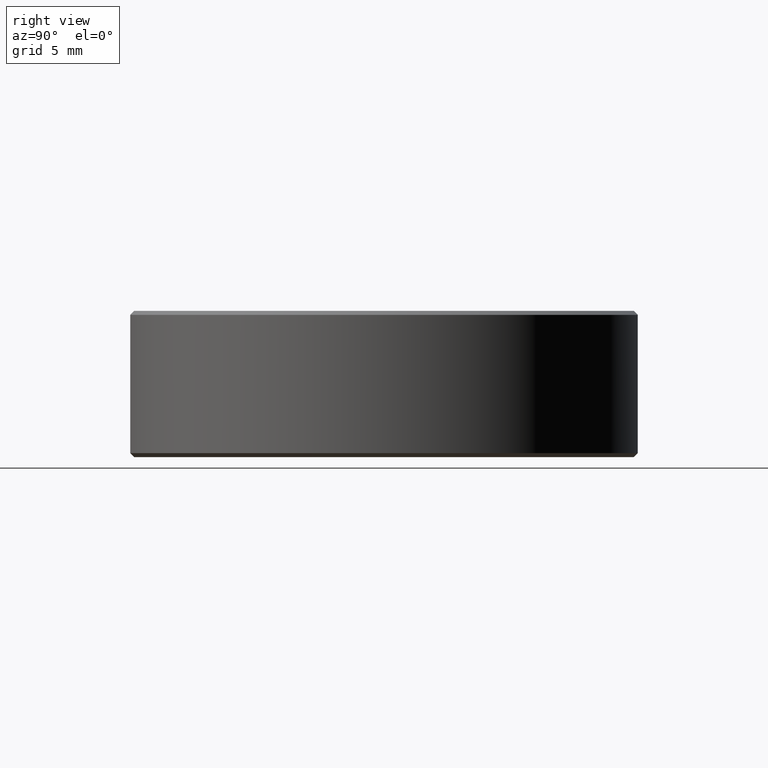
[diagram: clean part render]
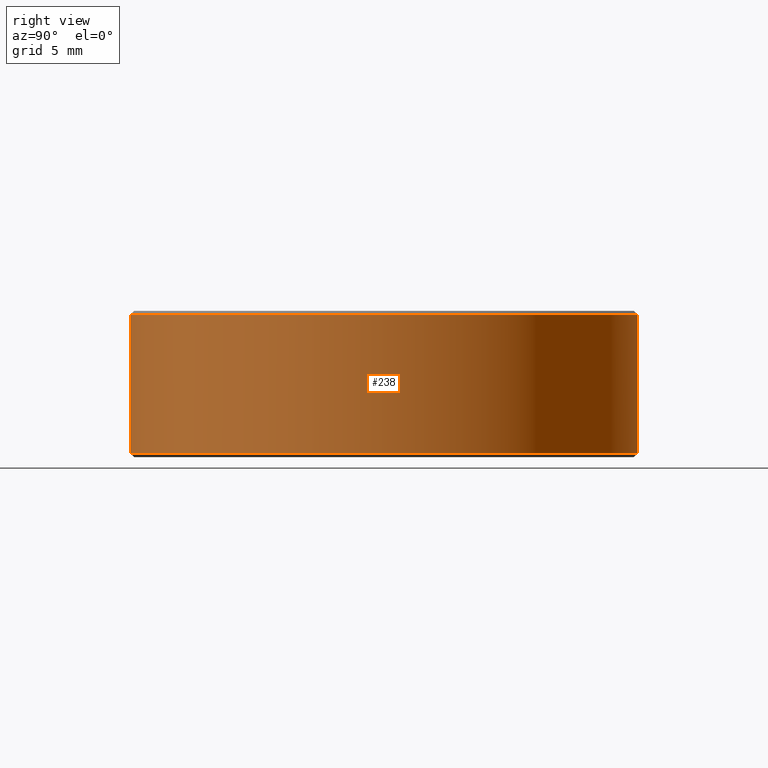
[diagram: same view with one face highlighted and labeled with its STEP entity id]
A machine part, right view. The second image highlights one B-rep face of the part: STEP entity #238.
In plain terms, the highlighted cylindrical surface (partial cylindrical patch) has radius 12.7 mm, axis along (-0, 0, -1).
Its self-contained STEP definition (entity closure, byte-faithful):
#4 = CARTESIAN_POINT ( 'NONE',  ( 0.0000000000000000000, 0.5000000000000000000, 0.1321802904112091300 ) ) ;
#7 = EDGE_CURVE ( 'NONE', #56, #208, #85, .T. ) ;
#8 = EDGE_CURVE ( 'NONE', #56, #282, #297, .T. ) ;
#23 = LINE ( 'NONE', #128, #283 ) ;
#24 = EDGE_LOOP ( 'NONE', ( #223, #255, #194, #284 ) ) ;
#28 = CARTESIAN_POINT ( 'NONE',  ( 0.0000000000000000000, 0.5000000000000000000, -0.1482116097789674400 ) ) ;
#45 = CARTESIAN_POINT ( 'NONE',  ( 0.0000000000000000000, 0.5000000000000000000, -0.1403375940309363200 ) ) ;
#52 = AXIS2_PLACEMENT_3D ( 'NONE', #263, #287, #107 ) ;
#56 = VERTEX_POINT ( 'NONE', #4 ) ;
#58 = DIRECTION ( 'NONE',  ( -0.0000000000000000000, 3.061515884555943100E-016, -1.000000000000000000 ) ) ;
#78 = DIRECTION ( 'NONE',  ( -0.0000000000000000000, 3.061515884555943100E-016, -1.000000000000000000 ) ) ;
#83 = DIRECTION ( 'NONE',  ( 0.0000000000000000000, 1.000000000000000000, 3.073328992872296400E-016 ) ) ;
#85 = CIRCLE ( 'NONE', #169, 0.5000000000000001100 ) ;
#106 = CARTESIAN_POINT ( 'NONE',  ( 6.123233995736767300E-017, -0.5000000000000001100, 0.1321802904112088200 ) ) ;
#107 = DIRECTION ( 'NONE',  ( 0.0000000000000000000, 1.000000000000000000, 3.073328992872296400E-016 ) ) ;
#115 = CYLINDRICAL_SURFACE ( 'NONE', #52, 0.5000000000000000000 ) ;
#126 = EDGE_CURVE ( 'NONE', #266, #282, #272, .T. ) ;
#128 = CARTESIAN_POINT ( 'NONE',  ( 6.123233995736766000E-017, -0.5000000000000000000, -0.1482116097789677500 ) ) ;
#136 = VECTOR ( 'NONE', #78, 39.37007874015748100 ) ;
#169 = AXIS2_PLACEMENT_3D ( 'NONE', #187, #58, #210 ) ;
#175 = EDGE_CURVE ( 'NONE', #208, #266, #23, .T. ) ;
#187 = CARTESIAN_POINT ( 'NONE',  ( 0.0000000000000000000, -7.861049834695238200E-017, 0.1321802904112089900 ) ) ;
#194 = ORIENTED_EDGE ( 'NONE', *, *, #126, .T. ) ;
#199 = CARTESIAN_POINT ( 'NONE',  ( 6.123233995736766000E-017, -0.5000000000000000000, -0.1403375940309366200 ) ) ;
#208 = VERTEX_POINT ( 'NONE', #106 ) ;
#210 = DIRECTION ( 'NONE',  ( 0.0000000000000000000, 1.000000000000000000, 3.073328992872295900E-016 ) ) ;
#223 = ORIENTED_EDGE ( 'NONE', *, *, #7, .T. ) ;
#234 = CARTESIAN_POINT ( 'NONE',  ( 0.0000000000000000000, 4.821284857568531500E-018, -0.1403375940309364900 ) ) ;
#238 = ADVANCED_FACE ( 'NONE', ( #274 ), #115, .T. ) ;
#255 = ORIENTED_EDGE ( 'NONE', *, *, #175, .T. ) ;
#257 = DIRECTION ( 'NONE',  ( 0.0000000000000000000, -3.061515884555942700E-016, 1.000000000000000000 ) ) ;
#263 = CARTESIAN_POINT ( 'NONE',  ( 0.0000000000000000000, 7.231927286352619700E-018, -0.1482116097789675800 ) ) ;
#266 = VERTEX_POINT ( 'NONE', #199 ) ;
#272 = CIRCLE ( 'NONE', #275, 0.5000000000000000000 ) ;
#274 = FACE_OUTER_BOUND ( 'NONE', #24, .T. ) ;
#275 = AXIS2_PLACEMENT_3D ( 'NONE', #234, #257, #83 ) ;
#282 = VERTEX_POINT ( 'NONE', #45 ) ;
#283 = VECTOR ( 'NONE', #289, 39.37007874015748100 ) ;
#284 = ORIENTED_EDGE ( 'NONE', *, *, #8, .F. ) ;
#287 = DIRECTION ( 'NONE',  ( -0.0000000000000000000, 3.061515884555943100E-016, -1.000000000000000000 ) ) ;
#289 = DIRECTION ( 'NONE',  ( -0.0000000000000000000, 3.061515884555943100E-016, -1.000000000000000000 ) ) ;
#297 = LINE ( 'NONE', #28, #136 ) ;